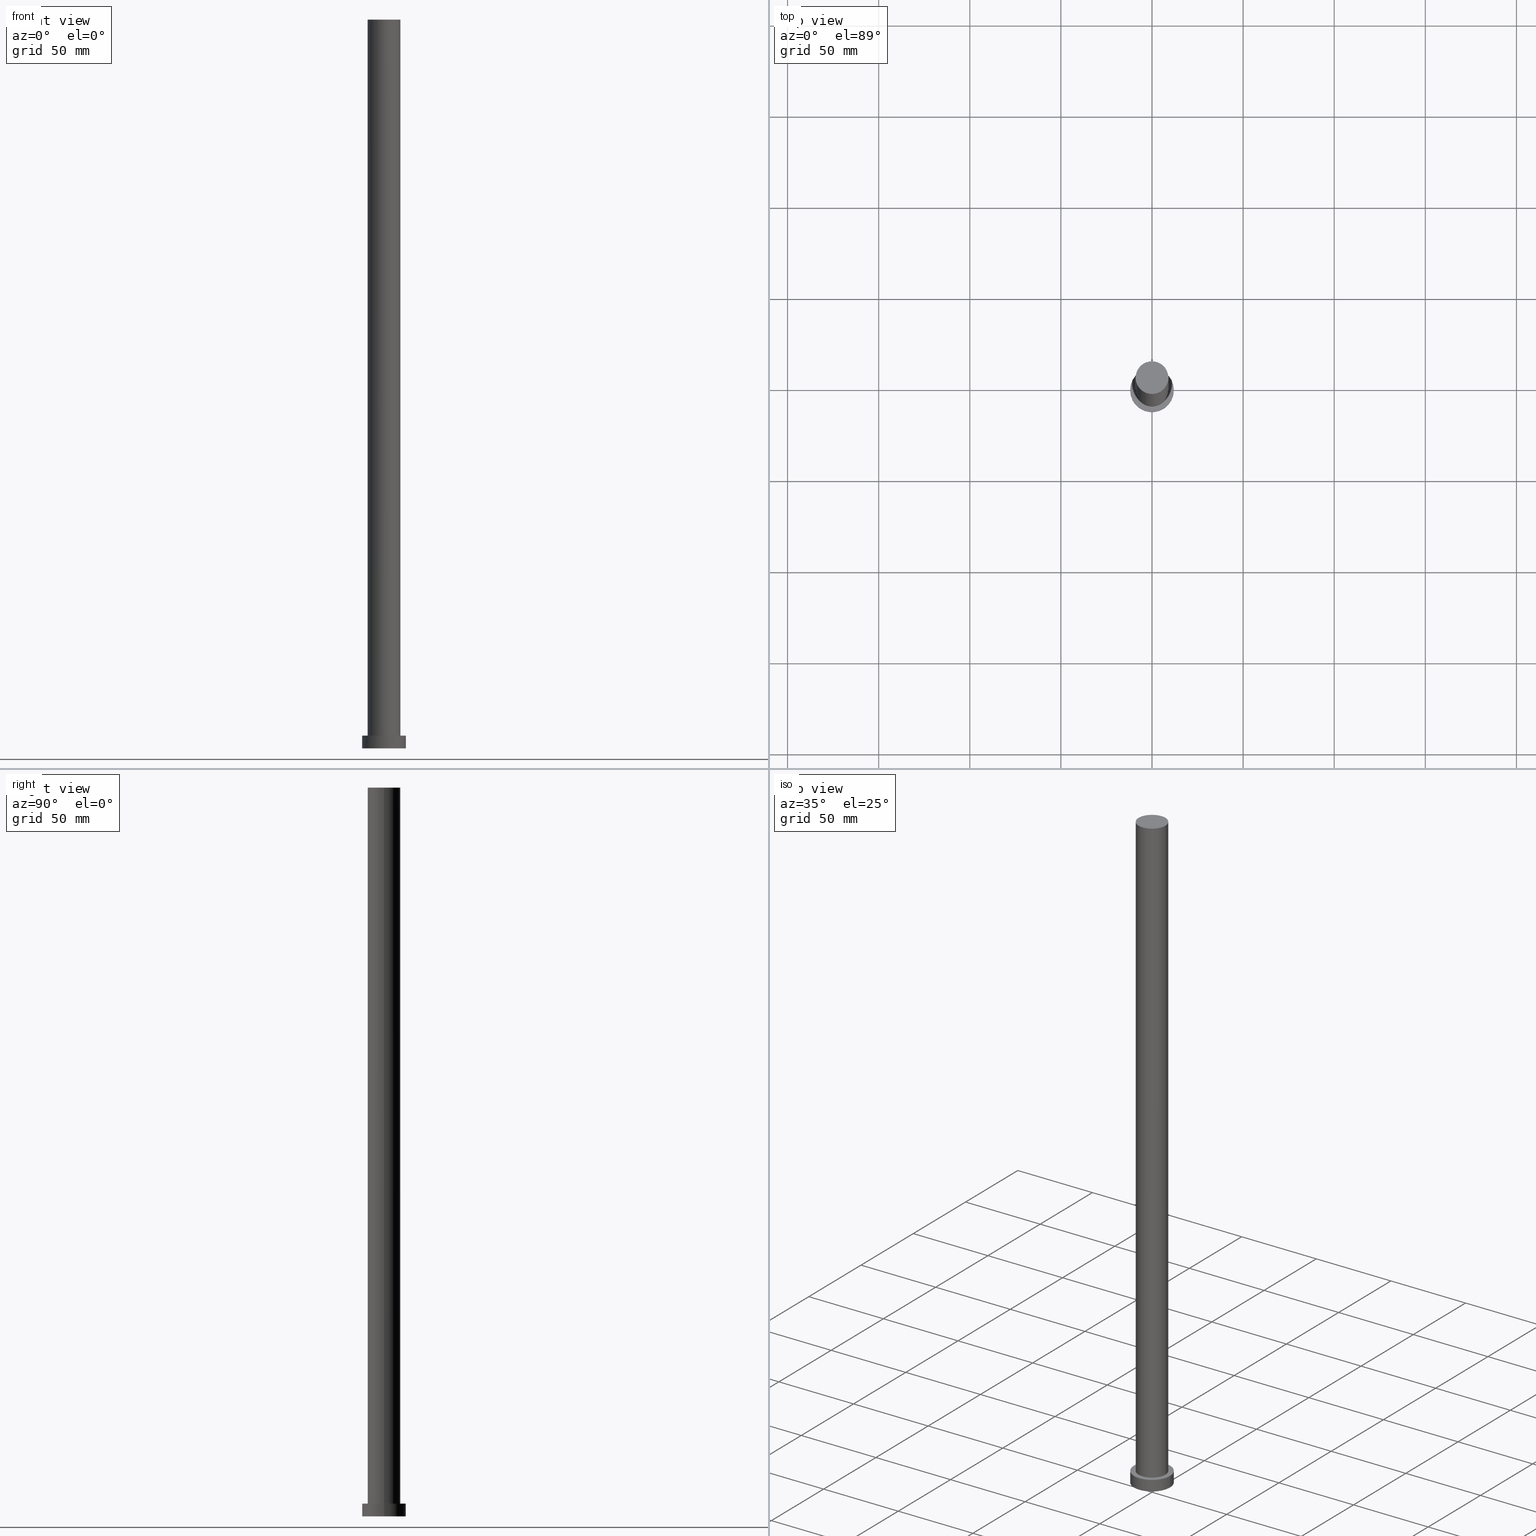
[diagram: canonical four-view strip — front | top / right | iso, engineering-drawing reading convention]
A machine part, canonical four-view strip (front | top / right | iso — engineering-drawing reading convention). The complete STEP part file that produces these views, byte-faithful:
ISO-10303-21;
HEADER;
FILE_DESCRIPTION (( 'STEP AP203' ),
    '1' );
FILE_NAME ('8190.STEP',
    '2023-02-13T07:35:19',
    ( '' ),
    ( '' ),
    'SwSTEP 2.0',
    'SolidWorks 2019',
    '' );
FILE_SCHEMA (( 'CONFIG_CONTROL_DESIGN' ));
ENDSEC;

DATA;
#1 = DIRECTION ( 'NONE',  ( 0.000000000000000000, 0.000000000000000000, 1.000000000000000000 ) ) ;
#2 = APPROVAL_PERSON_ORGANIZATION ( #38, #37, #81 ) ;
#3 = PERSON ( 'NEUR�EN�', 'NEUR�EN�', 'NEUR�EN�', ('NEUR�EN�'), ('NEUR�EN�'), ('NEUR�EN�') ) ;
#4 = CIRCLE ( 'NONE', #246, 9.000000000000000000 ) ;
#5 = APPROVAL ( #154, 'NEUR�EN�' ) ;
#6 = ADVANCED_FACE ( 'NONE', ( #198 ), #40, .T. ) ;
#7 = LINE ( 'NONE', #135, #23 ) ;
#8 = DIRECTION ( 'NONE',  ( 1.000000000000000000, 0.000000000000000000, -0.000000000000000000 ) ) ;
#9 = DIRECTION ( 'NONE',  ( 1.000000000000000000, 0.000000000000000000, 0.000000000000000000 ) ) ;
#10 = PRODUCT_DEFINITION_FORMATION_WITH_SPECIFIED_SOURCE ( 'LIBOVOLN�', '', #19, .NOT_KNOWN. ) ;
#11 = DIRECTION ( 'NONE',  ( -0.000000000000000000, -0.000000000000000000, -1.000000000000000000 ) ) ;
#12 = ORIENTED_EDGE ( 'NONE', *, *, #238, .T. ) ;
#13 = DIRECTION ( 'NONE',  ( -1.000000000000000000, 0.000000000000000000, 0.000000000000000000 ) ) ;
#14 = CALENDAR_DATE ( 2023, 13, 2 ) ;
#15 = AXIS2_PLACEMENT_3D ( 'NONE', #158, #148, #13 ) ;
#16 = EDGE_LOOP ( 'NONE', ( #252, #175, #100, #200 ) ) ;
#17 = ORIENTED_EDGE ( 'NONE', *, *, #52, .F. ) ;
#18 = ORIENTED_EDGE ( 'NONE', *, *, #107, .T. ) ;
#19 = PRODUCT ( '8190', '8190', '', ( #205 ) ) ;
#20 = SHAPE_DEFINITION_REPRESENTATION ( #120, #116 ) ;
#21 = EDGE_LOOP ( 'NONE', ( #12, #18 ) ) ;
#22 = SECURITY_CLASSIFICATION_LEVEL ( 'unclassified' ) ;
#23 = VECTOR ( 'NONE', #169, 1000.000000000000000 ) ;
#24 = AXIS2_PLACEMENT_3D ( 'NONE', #88, #1, #8 ) ;
#25 = CARTESIAN_POINT ( 'NONE',  ( 12.00000000000000178, 1.469576158976824144E-15, 0.000000000000000000 ) ) ;
#26 = CARTESIAN_POINT ( 'NONE',  ( 0.000000000000000000, 0.000000000000000000, 400.0000000000000000 ) ) ;
#27 = AXIS2_PLACEMENT_3D ( 'NONE', #244, #110, #58 ) ;
#28 = PLANE ( 'NONE',  #24 ) ;
#29 = EDGE_CURVE ( 'NONE', #65, #138, #34, .T. ) ;
#30 = DIRECTION ( 'NONE',  ( -1.000000000000000000, 0.000000000000000000, 0.000000000000000000 ) ) ;
#31 = DIRECTION ( 'NONE',  ( 1.000000000000000000, 0.000000000000000000, -0.000000000000000000 ) ) ;
#32 = CARTESIAN_POINT ( 'NONE',  ( -12.00000000000000178, 0.000000000000000000, 7.000000000000000000 ) ) ;
#33 = DIRECTION ( 'NONE',  ( -0.000000000000000000, -0.000000000000000000, -1.000000000000000000 ) ) ;
#34 = CIRCLE ( 'NONE', #229, 9.000000000000000000 ) ;
#35 = MANIFOLD_SOLID_BREP ( 'P�idat vysunut�m3', #185 ) ;
#36 = ORIENTED_EDGE ( 'NONE', *, *, #238, .F. ) ;
#37 = APPROVAL ( #251, 'NEUR�EN�' ) ;
#38 = PERSON_AND_ORGANIZATION ( #3, #94 ) ;
#39 = EDGE_LOOP ( 'NONE', ( #216, #162, #59, #117 ) ) ;
#40 = CYLINDRICAL_SURFACE ( 'NONE', #157, 9.000000000000000000 ) ;
#41 = ADVANCED_FACE ( 'NONE', ( #235 ), #69, .T. ) ;
#42 = DATE_AND_TIME ( #99, #237 ) ;
#43 = AXIS2_PLACEMENT_3D ( 'NONE', #51, #209, #31 ) ;
#44 = EDGE_LOOP ( 'NONE', ( #62, #193, #123, #160 ) ) ;
#45 = VERTEX_POINT ( 'NONE', #104 ) ;
#46 = APPROVAL_DATE_TIME ( #42, #37 ) ;
#47 = ORIENTED_EDGE ( 'NONE', *, *, #243, .T. ) ;
#48 = APPROVAL_DATE_TIME ( #121, #49 ) ;
#49 = APPROVAL ( #64, 'NEUR�EN�' ) ;
#50 = LOCAL_TIME ( 8, 35, 19.00000000000000000, #222 ) ;
#51 = CARTESIAN_POINT ( 'NONE',  ( 0.000000000000000000, 0.000000000000000000, 400.0000000000000000 ) ) ;
#52 = EDGE_CURVE ( 'NONE', #66, #221, #228, .T. ) ;
#53 = DIRECTION ( 'NONE',  ( 1.000000000000000000, 0.000000000000000000, 0.000000000000000000 ) ) ;
#54 = DIRECTION ( 'NONE',  ( 0.000000000000000000, 0.000000000000000000, 1.000000000000000000 ) ) ;
#55 = CARTESIAN_POINT ( 'NONE',  ( 0.000000000000000000, 0.000000000000000000, 7.000000000000000000 ) ) ;
#56 = DIRECTION ( 'NONE',  ( -1.000000000000000000, 0.000000000000000000, 0.000000000000000000 ) ) ;
#57 = CC_DESIGN_APPROVAL ( #37, ( #249 ) ) ;
#58 = DIRECTION ( 'NONE',  ( 1.000000000000000000, 0.000000000000000000, 0.000000000000000000 ) ) ;
#59 = ORIENTED_EDGE ( 'NONE', *, *, #29, .T. ) ;
#60 = PRODUCT_DEFINITION ( 'NEZN�M�', '', #10, #167 ) ;
#61 = LINE ( 'NONE', #91, #105 ) ;
#62 = ORIENTED_EDGE ( 'NONE', *, *, #153, .F. ) ;
#63 = ADVANCED_FACE ( 'NONE', ( #217 ), #119, .T. ) ;
#64 = APPROVAL_STATUS ( 'not_yet_approved' ) ;
#65 = VERTEX_POINT ( 'NONE', #210 ) ;
#66 = VERTEX_POINT ( 'NONE', #242 ) ;
#67 = COORDINATED_UNIVERSAL_TIME_OFFSET ( 1, 0, .AHEAD. ) ;
#68 = AXIS2_PLACEMENT_3D ( 'NONE', #173, #247, #176 ) ;
#69 = CYLINDRICAL_SURFACE ( 'NONE', #15, 12.00000000000000178 ) ;
#70 = APPLICATION_CONTEXT ( 'configuration controlled 3d designs of mechanical parts and assemblies' ) ;
#71 = COORDINATED_UNIVERSAL_TIME_OFFSET ( 1, 0, .AHEAD. ) ;
#72 = APPLICATION_PROTOCOL_DEFINITION ( 'international standard', 'config_control_design', 1994, #93 ) ;
#73 = VECTOR ( 'NONE', #95, 1000.000000000000000 ) ;
#74 = LINE ( 'NONE', #152, #73 ) ;
#75 = APPLICATION_PROTOCOL_DEFINITION ( 'international standard', 'config_control_design', 1994, #70 ) ;
#76 = AXIS2_PLACEMENT_3D ( 'NONE', #77, #33, #30 ) ;
#77 = CARTESIAN_POINT ( 'NONE',  ( 0.000000000000000000, 0.000000000000000000, 400.0000000000000000 ) ) ;
#78 = EDGE_LOOP ( 'NONE', ( #80, #230 ) ) ;
#79 = ADVANCED_FACE ( 'NONE', ( #192 ), #189, .T. ) ;
#80 = ORIENTED_EDGE ( 'NONE', *, *, #243, .F. ) ;
#81 = APPROVAL_ROLE ( '' ) ;
#82 = DIRECTION ( 'NONE',  ( 1.000000000000000000, 0.000000000000000000, 0.000000000000000000 ) ) ;
#83 = AXIS2_PLACEMENT_3D ( 'NONE', #131, #187, #53 ) ;
#84 = DIRECTION ( 'NONE',  ( 0.000000000000000000, 0.000000000000000000, 1.000000000000000000 ) ) ;
#85 = CC_DESIGN_DATE_AND_TIME_ASSIGNMENT ( #182, #220, ( #249 ) ) ;
#86 = UNCERTAINTY_MEASURE_WITH_UNIT (LENGTH_MEASURE( 1.000000000000000082E-05 ), #172, 'distance_accuracy_value', 'NONE');
#87 =( GEOMETRIC_REPRESENTATION_CONTEXT ( 3 ) GLOBAL_UNCERTAINTY_ASSIGNED_CONTEXT ( ( #86 ) ) GLOBAL_UNIT_ASSIGNED_CONTEXT ( ( #172, #240, #225 ) ) REPRESENTATION_CONTEXT ( 'NONE', 'WORKASPACE' ) );
#88 = CARTESIAN_POINT ( 'NONE',  ( 0.000000000000000000, 0.000000000000000000, 7.000000000000000000 ) ) ;
#89 = FACE_OUTER_BOUND ( 'NONE', #21, .T. ) ;
#90 = CC_DESIGN_PERSON_AND_ORGANIZATION_ASSIGNMENT ( #215, #146, ( #10 ) ) ;
#91 = CARTESIAN_POINT ( 'NONE',  ( 12.00000000000000178, 1.469576158976824144E-15, 7.000000000000000000 ) ) ;
#92 = DIRECTION ( 'NONE',  ( 1.000000000000000000, 0.000000000000000000, 0.000000000000000000 ) ) ;
#93 = APPLICATION_CONTEXT ( 'configuration controlled 3d designs of mechanical parts and assemblies' ) ;
#94 = ORGANIZATION ( 'NEUR�EN�', 'NEUR�EN�', '' ) ;
#95 = DIRECTION ( 'NONE',  ( -0.000000000000000000, -0.000000000000000000, -1.000000000000000000 ) ) ;
#96 = DIRECTION ( 'NONE',  ( 0.000000000000000000, 0.000000000000000000, 1.000000000000000000 ) ) ;
#97 = DIRECTION ( 'NONE',  ( 1.000000000000000000, 0.000000000000000000, 0.000000000000000000 ) ) ;
#98 = ORIENTED_EDGE ( 'NONE', *, *, #214, .T. ) ;
#99 = CALENDAR_DATE ( 2023, 13, 2 ) ;
#100 = ORIENTED_EDGE ( 'NONE', *, *, #127, .T. ) ;
#101 = PERSON_AND_ORGANIZATION ( #3, #94 ) ;
#102 = DIRECTION ( 'NONE',  ( 0.000000000000000000, 0.000000000000000000, 1.000000000000000000 ) ) ;
#103 = PERSON_AND_ORGANIZATION ( #3, #94 ) ;
#104 = CARTESIAN_POINT ( 'NONE',  ( -9.000000000000000000, 0.000000000000000000, 400.0000000000000000 ) ) ;
#105 = VECTOR ( 'NONE', #156, 1000.000000000000000 ) ;
#106 = CC_DESIGN_PERSON_AND_ORGANIZATION_ASSIGNMENT ( #103, #124, ( #10 ) ) ;
#107 = EDGE_CURVE ( 'NONE', #231, #45, #211, .T. ) ;
#108 = FACE_OUTER_BOUND ( 'NONE', #147, .T. ) ;
#109 = CARTESIAN_POINT ( 'NONE',  ( -12.00000000000000178, 0.000000000000000000, 7.000000000000000000 ) ) ;
#110 = DIRECTION ( 'NONE',  ( 0.000000000000000000, 0.000000000000000000, 1.000000000000000000 ) ) ;
#111 = DIRECTION ( 'NONE',  ( 1.000000000000000000, 0.000000000000000000, 0.000000000000000000 ) ) ;
#112 = EDGE_CURVE ( 'NONE', #231, #65, #7, .T. ) ;
#113 = PLANE ( 'NONE',  #43 ) ;
#114 = CC_DESIGN_APPROVAL ( #49, ( #10 ) ) ;
#115 = PLANE ( 'NONE',  #68 ) ;
#116 = ADVANCED_BREP_SHAPE_REPRESENTATION ( '8190', ( #35, #145 ), #87 ) ;
#117 = ORIENTED_EDGE ( 'NONE', *, *, #255, .F. ) ;
#118 = VERTEX_POINT ( 'NONE', #139 ) ;
#119 = CYLINDRICAL_SURFACE ( 'NONE', #186, 12.00000000000000178 ) ;
#120 = PRODUCT_DEFINITION_SHAPE ( 'NONE', 'NONE',  #60 ) ;
#121 = DATE_AND_TIME ( #14, #50 ) ;
#122 = ORIENTED_EDGE ( 'NONE', *, *, #202, .T. ) ;
#123 = ORIENTED_EDGE ( 'NONE', *, *, #161, .T. ) ;
#124 = PERSON_AND_ORGANIZATION_ROLE ( 'design_supplier' ) ;
#125 = DIRECTION ( 'NONE',  ( -0.000000000000000000, -0.000000000000000000, -1.000000000000000000 ) ) ;
#126 = PERSON_AND_ORGANIZATION_ROLE ( 'classification_officer' ) ;
#127 = EDGE_CURVE ( 'NONE', #221, #66, #166, .T. ) ;
#128 = LOCAL_TIME ( 8, 35, 19.00000000000000000, #71 ) ;
#129 = CIRCLE ( 'NONE', #155, 12.00000000000000178 ) ;
#130 = DIRECTION ( 'NONE',  ( 0.000000000000000000, 0.000000000000000000, 1.000000000000000000 ) ) ;
#131 = CARTESIAN_POINT ( 'NONE',  ( 0.000000000000000000, 0.000000000000000000, 7.000000000000000000 ) ) ;
#132 = CC_DESIGN_PERSON_AND_ORGANIZATION_ASSIGNMENT ( #165, #168, ( #19 ) ) ;
#133 = DIRECTION ( 'NONE',  ( 0.000000000000000000, 0.000000000000000000, 1.000000000000000000 ) ) ;
#134 = ADVANCED_FACE ( 'NONE', ( #212 ), #115, .F. ) ;
#135 = CARTESIAN_POINT ( 'NONE',  ( 9.000000000000000000, 1.102182119232617714E-15, 400.0000000000000000 ) ) ;
#136 = DIRECTION ( 'NONE',  ( 1.000000000000000000, 0.000000000000000000, 0.000000000000000000 ) ) ;
#137 = CC_DESIGN_SECURITY_CLASSIFICATION ( #249, ( #10 ) ) ;
#138 = VERTEX_POINT ( 'NONE', #248 ) ;
#139 = CARTESIAN_POINT ( 'NONE',  ( 12.00000000000000178, 1.469576158976824144E-15, 7.000000000000000000 ) ) ;
#140 = COORDINATED_UNIVERSAL_TIME_OFFSET ( 1, 0, .AHEAD. ) ;
#141 = DIRECTION ( 'NONE',  ( 1.000000000000000000, 0.000000000000000000, 0.000000000000000000 ) ) ;
#142 = APPROVAL_ROLE ( '' ) ;
#143 = LOCAL_TIME ( 8, 35, 19.00000000000000000, #140 ) ;
#144 = ORIENTED_EDGE ( 'NONE', *, *, #112, .F. ) ;
#145 = AXIS2_PLACEMENT_3D ( 'NONE', #224, #130, #92 ) ;
#146 = PERSON_AND_ORGANIZATION_ROLE ( 'creator' ) ;
#147 = EDGE_LOOP ( 'NONE', ( #98, #122 ) ) ;
#148 = DIRECTION ( 'NONE',  ( -0.000000000000000000, -0.000000000000000000, -1.000000000000000000 ) ) ;
#149 = DATE_AND_TIME ( #196, #128 ) ;
#150 = VECTOR ( 'NONE', #241, 1000.000000000000000 ) ;
#151 = CC_DESIGN_DATE_AND_TIME_ASSIGNMENT ( #149, #159, ( #60 ) ) ;
#152 = CARTESIAN_POINT ( 'NONE',  ( -9.000000000000000000, 0.000000000000000000, 400.0000000000000000 ) ) ;
#153 = EDGE_CURVE ( 'NONE', #118, #221, #61, .T. ) ;
#154 = APPROVAL_STATUS ( 'not_yet_approved' ) ;
#155 = AXIS2_PLACEMENT_3D ( 'NONE', #55, #54, #136 ) ;
#156 = DIRECTION ( 'NONE',  ( -0.000000000000000000, -0.000000000000000000, -1.000000000000000000 ) ) ;
#157 = AXIS2_PLACEMENT_3D ( 'NONE', #213, #125, #164 ) ;
#158 = CARTESIAN_POINT ( 'NONE',  ( 0.000000000000000000, 0.000000000000000000, 7.000000000000000000 ) ) ;
#159 = DATE_TIME_ROLE ( 'creation_date' ) ;
#160 = ORIENTED_EDGE ( 'NONE', *, *, #52, .T. ) ;
#161 = EDGE_CURVE ( 'NONE', #219, #66, #208, .T. ) ;
#162 = ORIENTED_EDGE ( 'NONE', *, *, #112, .T. ) ;
#163 = APPROVAL_PERSON_ORGANIZATION ( #218, #49, #142 ) ;
#164 = DIRECTION ( 'NONE',  ( -1.000000000000000000, 0.000000000000000000, 0.000000000000000000 ) ) ;
#165 = PERSON_AND_ORGANIZATION ( #3, #94 ) ;
#166 = CIRCLE ( 'NONE', #171, 12.00000000000000178 ) ;
#167 = DESIGN_CONTEXT ( 'detailed design', #70, 'design' ) ;
#168 = PERSON_AND_ORGANIZATION_ROLE ( 'design_owner' ) ;
#169 = DIRECTION ( 'NONE',  ( -0.000000000000000000, -0.000000000000000000, -1.000000000000000000 ) ) ;
#170 = PERSON_AND_ORGANIZATION ( #3, #94 ) ;
#171 = AXIS2_PLACEMENT_3D ( 'NONE', #191, #96, #97 ) ;
#172 =( LENGTH_UNIT ( ) NAMED_UNIT ( * ) SI_UNIT ( .MILLI., .METRE. ) );
#173 = CARTESIAN_POINT ( 'NONE',  ( 0.000000000000000000, 0.000000000000000000, 0.000000000000000000 ) ) ;
#174 = COORDINATED_UNIVERSAL_TIME_OFFSET ( 1, 0, .AHEAD. ) ;
#175 = ORIENTED_EDGE ( 'NONE', *, *, #153, .T. ) ;
#176 = DIRECTION ( 'NONE',  ( 1.000000000000000000, 0.000000000000000000, -0.000000000000000000 ) ) ;
#177 = CC_DESIGN_PERSON_AND_ORGANIZATION_ASSIGNMENT ( #101, #126, ( #249 ) ) ;
#178 = AXIS2_PLACEMENT_3D ( 'NONE', #190, #133, #111 ) ;
#179 = PERSON_AND_ORGANIZATION ( #3, #94 ) ;
#180 = ADVANCED_FACE ( 'NONE', ( #89 ), #113, .T. ) ;
#181 = ORIENTED_EDGE ( 'NONE', *, *, #255, .T. ) ;
#182 = DATE_AND_TIME ( #183, #143 ) ;
#183 = CALENDAR_DATE ( 2023, 13, 2 ) ;
#184 = CARTESIAN_POINT ( 'NONE',  ( 0.000000000000000000, 0.000000000000000000, 0.000000000000000000 ) ) ;
#185 = CLOSED_SHELL ( 'NONE', ( #6, #63, #41, #223, #134, #79, #180 ) ) ;
#186 = AXIS2_PLACEMENT_3D ( 'NONE', #195, #11, #56 ) ;
#187 = DIRECTION ( 'NONE',  ( 0.000000000000000000, 0.000000000000000000, 1.000000000000000000 ) ) ;
#188 = APPROVAL_PERSON_ORGANIZATION ( #170, #5, #245 ) ;
#189 = CYLINDRICAL_SURFACE ( 'NONE', #76, 9.000000000000000000 ) ;
#190 = CARTESIAN_POINT ( 'NONE',  ( 0.000000000000000000, 0.000000000000000000, 7.000000000000000000 ) ) ;
#191 = CARTESIAN_POINT ( 'NONE',  ( 0.000000000000000000, 0.000000000000000000, 0.000000000000000000 ) ) ;
#192 = FACE_OUTER_BOUND ( 'NONE', #194, .T. ) ;
#193 = ORIENTED_EDGE ( 'NONE', *, *, #214, .F. ) ;
#194 = EDGE_LOOP ( 'NONE', ( #144, #36, #181, #47 ) ) ;
#195 = CARTESIAN_POINT ( 'NONE',  ( 0.000000000000000000, 0.000000000000000000, 7.000000000000000000 ) ) ;
#196 = CALENDAR_DATE ( 2023, 13, 2 ) ;
#197 = EDGE_LOOP ( 'NONE', ( #17, #232 ) ) ;
#198 = FACE_OUTER_BOUND ( 'NONE', #39, .T. ) ;
#199 = APPROVAL_DATE_TIME ( #236, #5 ) ;
#200 = ORIENTED_EDGE ( 'NONE', *, *, #161, .F. ) ;
#201 = CIRCLE ( 'NONE', #178, 12.00000000000000178 ) ;
#202 = EDGE_CURVE ( 'NONE', #118, #219, #201, .T. ) ;
#203 = CIRCLE ( 'NONE', #83, 9.000000000000000000 ) ;
#204 = FACE_BOUND ( 'NONE', #78, .T. ) ;
#205 = MECHANICAL_CONTEXT ( 'NONE', #93, 'mechanical' ) ;
#206 = CARTESIAN_POINT ( 'NONE',  ( 9.000000000000000000, 1.102182119232617714E-15, 400.0000000000000000 ) ) ;
#207 = CC_DESIGN_PERSON_AND_ORGANIZATION_ASSIGNMENT ( #179, #233, ( #60 ) ) ;
#208 = LINE ( 'NONE', #32, #150 ) ;
#209 = DIRECTION ( 'NONE',  ( 0.000000000000000000, 0.000000000000000000, 1.000000000000000000 ) ) ;
#210 = CARTESIAN_POINT ( 'NONE',  ( 9.000000000000000000, 1.102182119232617714E-15, 7.000000000000000000 ) ) ;
#211 = CIRCLE ( 'NONE', #27, 9.000000000000000000 ) ;
#212 = FACE_OUTER_BOUND ( 'NONE', #197, .T. ) ;
#213 = CARTESIAN_POINT ( 'NONE',  ( 0.000000000000000000, 0.000000000000000000, 400.0000000000000000 ) ) ;
#214 = EDGE_CURVE ( 'NONE', #219, #118, #129, .T. ) ;
#215 = PERSON_AND_ORGANIZATION ( #3, #94 ) ;
#216 = ORIENTED_EDGE ( 'NONE', *, *, #107, .F. ) ;
#217 = FACE_OUTER_BOUND ( 'NONE', #16, .T. ) ;
#218 = PERSON_AND_ORGANIZATION ( #3, #94 ) ;
#219 = VERTEX_POINT ( 'NONE', #109 ) ;
#220 = DATE_TIME_ROLE ( 'classification_date' ) ;
#221 = VERTEX_POINT ( 'NONE', #25 ) ;
#222 = COORDINATED_UNIVERSAL_TIME_OFFSET ( 1, 0, .AHEAD. ) ;
#223 = ADVANCED_FACE ( 'NONE', ( #204, #108 ), #28, .T. ) ;
#224 = CARTESIAN_POINT ( 'NONE',  ( 0.000000000000000000, 0.000000000000000000, 0.000000000000000000 ) ) ;
#225 =( NAMED_UNIT ( * ) SI_UNIT ( $, .STERADIAN. ) SOLID_ANGLE_UNIT ( ) );
#226 = PRODUCT_RELATED_PRODUCT_CATEGORY ( 'detail', '', ( #19 ) ) ;
#227 = DIRECTION ( 'NONE',  ( 0.000000000000000000, 0.000000000000000000, 1.000000000000000000 ) ) ;
#228 = CIRCLE ( 'NONE', #250, 12.00000000000000178 ) ;
#229 = AXIS2_PLACEMENT_3D ( 'NONE', #253, #102, #82 ) ;
#230 = ORIENTED_EDGE ( 'NONE', *, *, #29, .F. ) ;
#231 = VERTEX_POINT ( 'NONE', #206 ) ;
#232 = ORIENTED_EDGE ( 'NONE', *, *, #127, .F. ) ;
#233 = PERSON_AND_ORGANIZATION_ROLE ( 'creator' ) ;
#234 = CC_DESIGN_APPROVAL ( #5, ( #60 ) ) ;
#235 = FACE_OUTER_BOUND ( 'NONE', #44, .T. ) ;
#236 = DATE_AND_TIME ( #254, #239 ) ;
#237 = LOCAL_TIME ( 8, 35, 19.00000000000000000, #67 ) ;
#238 = EDGE_CURVE ( 'NONE', #45, #231, #4, .T. ) ;
#239 = LOCAL_TIME ( 8, 35, 19.00000000000000000, #174 ) ;
#240 =( NAMED_UNIT ( * ) PLANE_ANGLE_UNIT ( ) SI_UNIT ( $, .RADIAN. ) );
#241 = DIRECTION ( 'NONE',  ( -0.000000000000000000, -0.000000000000000000, -1.000000000000000000 ) ) ;
#242 = CARTESIAN_POINT ( 'NONE',  ( -12.00000000000000178, 0.000000000000000000, 0.000000000000000000 ) ) ;
#243 = EDGE_CURVE ( 'NONE', #138, #65, #203, .T. ) ;
#244 = CARTESIAN_POINT ( 'NONE',  ( 0.000000000000000000, 0.000000000000000000, 400.0000000000000000 ) ) ;
#245 = APPROVAL_ROLE ( '' ) ;
#246 = AXIS2_PLACEMENT_3D ( 'NONE', #26, #227, #9 ) ;
#247 = DIRECTION ( 'NONE',  ( 0.000000000000000000, 0.000000000000000000, 1.000000000000000000 ) ) ;
#248 = CARTESIAN_POINT ( 'NONE',  ( -9.000000000000000000, 0.000000000000000000, 7.000000000000000000 ) ) ;
#249 = SECURITY_CLASSIFICATION ( '', '', #22 ) ;
#250 = AXIS2_PLACEMENT_3D ( 'NONE', #184, #84, #141 ) ;
#251 = APPROVAL_STATUS ( 'not_yet_approved' ) ;
#252 = ORIENTED_EDGE ( 'NONE', *, *, #202, .F. ) ;
#253 = CARTESIAN_POINT ( 'NONE',  ( 0.000000000000000000, 0.000000000000000000, 7.000000000000000000 ) ) ;
#254 = CALENDAR_DATE ( 2023, 13, 2 ) ;
#255 = EDGE_CURVE ( 'NONE', #45, #138, #74, .T. ) ;
ENDSEC;
END-ISO-10303-21;
